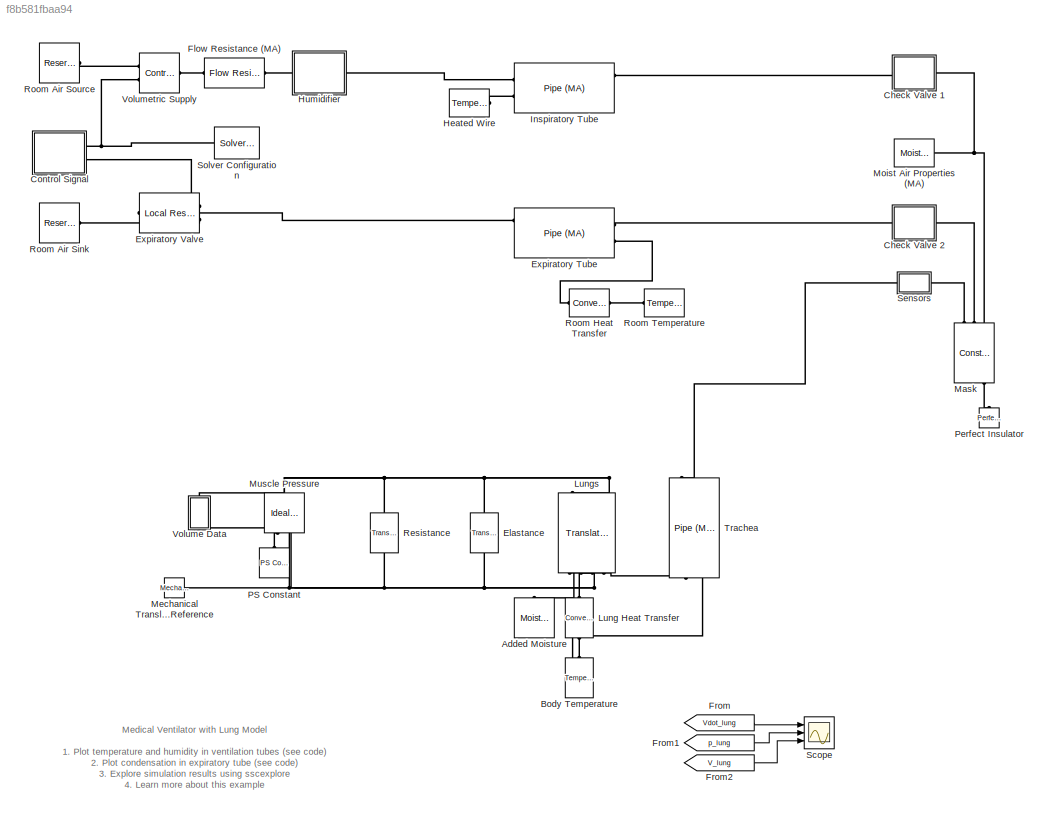
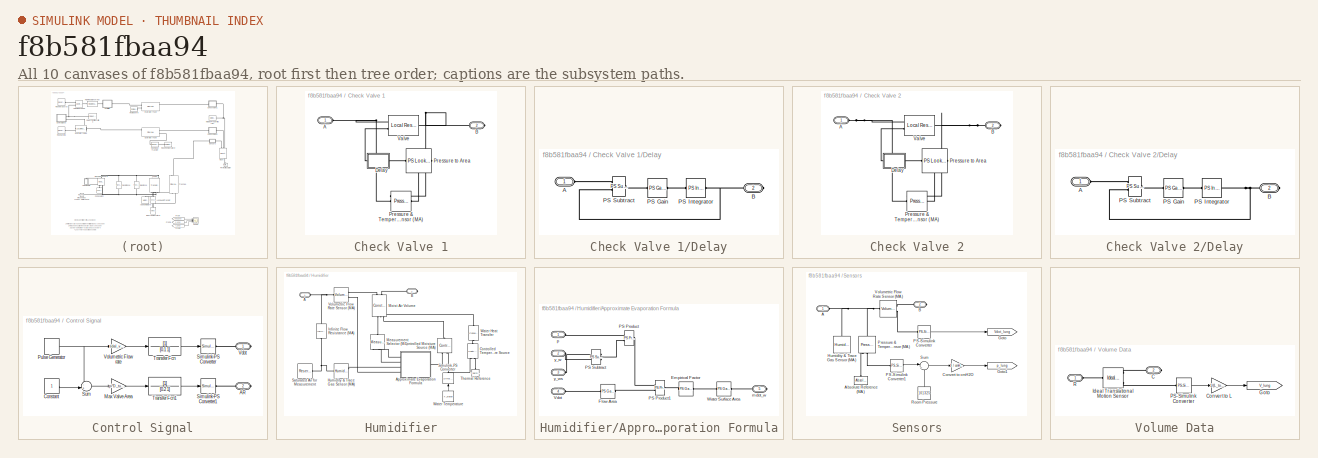
[diagram: thumbnail index - all 10 canvases of the model, root first then tree order]
MODEL slx_f8b581fbaa94
KIND model
CONFIG AbsTol = 1e-3
CONFIG EnableMultiTasking = off
CONFIG FixedStep = auto
CONFIG MaxStep = auto
CONFIG MinStep = auto
CONFIG PreLoadFcn = T_room = 20; % degC\nRH_room = 0.1;\nT_humidifier = 40; % degC\nT_body = 37; % degC\n\nL_tube = 1; % m\nD_tube = 0.01; % m\nL_trachea = 0.15; % m\nD_trachea = 0.015; % m\n\nFRC = 2; % L\nE_respiratory = 10; % cmH2O/L\nR_respiratory = 2; % cmH2O/(L/s)\nP_muscle = 0; % cmH2O\n\n% Conversion factors\ncmH2O_to_Pa = 98.0665;\nL_to_m3 = 1e-3;
CONFIG RelTol = 1e-3
CONFIG SampleTimeConstraint = Unconstrained
CONFIG Solver = VariableStepAuto
CONFIG SolverName = VariableStepAuto
CONFIG StartTime = 0.0
CONFIG StopTime = 30
BLOCK [Reference] Added Moisture  REF=fl_lib/Moist Air/Sources/Moisture & Trace Gas
Sources/Moisture Source (MA)
  NameLocation = left
  Ports = [0, 0, 0, 0, 0, 1]
  SourceBlock = fl_lib/Moist Air/Sources/Moisture & Trace Gas\nSources/Moisture Source (MA)
  SourceProductBaseCode = MT,SS
  SourceType = Moisture Source (MA)
BLOCK [Reference] Body Temperature  REF=fl_lib/Thermal/Thermal Sources/Temperature Source
  NameLocation = right
  Ports = [0, 0, 0, 0, 0, 1]
  SourceBlock = fl_lib/Thermal/Thermal Sources/Temperature Source
  SourceProductBaseCode = MT,SS
  SourceType = Temperature Source
BLOCK [SubSystem] Check Valve 1
  Ports = [0, 0, 0, 0, 0, 1, 1]
  RequestExecContextInheritance = off
  Tag = PublishSubsystem
BLOCK [PMIOPort] Check Valve 1/A
  Side = Left
BLOCK [PMIOPort] Check Valve 1/B
  Port = 2
  Side = Right
BLOCK [SubSystem] Check Valve 1/Delay
  Ports = [0, 0, 0, 0, 0, 1, 1]
  RequestExecContextInheritance = off
BLOCK [PMIOPort] Check Valve 1/Delay/A
  Side = Left
BLOCK [PMIOPort] Check Valve 1/Delay/B
  Port = 2
  Side = Right
BLOCK [Reference] Check Valve 1/Delay/PS Gain  REF=fl_lib/Physical Signals/Functions/PS Gain
  Ports = [0, 0, 0, 0, 0, 1, 1]
  SourceBlock = fl_lib/Physical Signals/Functions/PS Gain
  SourceProductBaseCode = MT,SS
  SourceType = PS Gain
BLOCK [Reference] Check Valve 1/Delay/PS Integrator  REF=fl_lib/Physical Signals/Linear Operators/PS Integrator
  Ports = [0, 0, 0, 0, 0, 1, 1]
  SourceBlock = fl_lib/Physical Signals/Linear Operators/PS Integrator
  SourceProductBaseCode = MT,SS
  SourceType = PS Integrator
BLOCK [Reference] Check Valve 1/Delay/PS Subtract  REF=fl_lib/Physical Signals/Functions/PS Subtract
  Ports = [0, 0, 0, 0, 0, 2, 1]
  SourceBlock = fl_lib/Physical Signals/Functions/PS Subtract
  SourceProductBaseCode = MT,SS
  SourceType = PS Subtract
BLOCK [Reference] Check Valve 1/Pressure & Temperature Sensor (MA)  REF=fl_lib/Moist Air/Sensors/Pressure &
Temperature Sensor
(MA)
  Ports = [0, 0, 0, 0, 0, 1, 3]
  SourceBlock = fl_lib/Moist Air/Sensors/Pressure &\nTemperature Sensor\n(MA)
  SourceProductBaseCode = MT,SS
  SourceType = Pressure &\nTemperature Sensor\n(MA)
BLOCK [Reference] Check Valve 1/Pressure to Area  REF=fl_lib/Physical Signals/Lookup Tables/PS Lookup Table (1D)
  Ports = [0, 0, 0, 0, 0, 1, 1]
  SourceBlock = fl_lib/Physical Signals/Lookup Tables/PS Lookup Table (1D)
  SourceProductBaseCode = MT,SS
  SourceType = PS Lookup Table (1D)
BLOCK [Reference] Check Valve 1/Valve  REF=fl_lib/Moist Air/Elements/Local Restriction
(MA)
  Ports = [0, 0, 0, 0, 0, 2, 1]
  SourceBlock = fl_lib/Moist Air/Elements/Local Restriction\n(MA)
  SourceProductBaseCode = MT,SS
  SourceType = Local Restriction\n(MA)
BLOCK [SubSystem] Check Valve 2
  Ports = [0, 0, 0, 0, 0, 1, 1]
  RequestExecContextInheritance = off
BLOCK [PMIOPort] Check Valve 2/A
  Side = Left
BLOCK [PMIOPort] Check Valve 2/B
  Port = 2
  Side = Right
BLOCK [SubSystem] Check Valve 2/Delay
  Ports = [0, 0, 0, 0, 0, 1, 1]
  RequestExecContextInheritance = off
BLOCK [PMIOPort] Check Valve 2/Delay/A
  Side = Left
BLOCK [PMIOPort] Check Valve 2/Delay/B
  Port = 2
  Side = Right
BLOCK [Reference] Check Valve 2/Delay/PS Gain  REF=fl_lib/Physical Signals/Functions/PS Gain
  Ports = [0, 0, 0, 0, 0, 1, 1]
  SourceBlock = fl_lib/Physical Signals/Functions/PS Gain
  SourceProductBaseCode = MT,SS
  SourceType = PS Gain
BLOCK [Reference] Check Valve 2/Delay/PS Integrator  REF=fl_lib/Physical Signals/Linear Operators/PS Integrator
  Ports = [0, 0, 0, 0, 0, 1, 1]
  SourceBlock = fl_lib/Physical Signals/Linear Operators/PS Integrator
  SourceProductBaseCode = MT,SS
  SourceType = PS Integrator
BLOCK [Reference] Check Valve 2/Delay/PS Subtract  REF=fl_lib/Physical Signals/Functions/PS Subtract
  Ports = [0, 0, 0, 0, 0, 2, 1]
  SourceBlock = fl_lib/Physical Signals/Functions/PS Subtract
  SourceProductBaseCode = MT,SS
  SourceType = PS Subtract
BLOCK [Reference] Check Valve 2/Pressure & Temperature Sensor (MA)  REF=fl_lib/Moist Air/Sensors/Pressure &
Temperature Sensor
(MA)
  Ports = [0, 0, 0, 0, 0, 1, 3]
  SourceBlock = fl_lib/Moist Air/Sensors/Pressure &\nTemperature Sensor\n(MA)
  SourceProductBaseCode = MT,SS
  SourceType = Pressure &\nTemperature Sensor\n(MA)
BLOCK [Reference] Check Valve 2/Pressure to Area  REF=fl_lib/Physical Signals/Lookup Tables/PS Lookup Table (1D)
  Ports = [0, 0, 0, 0, 0, 1, 1]
  SourceBlock = fl_lib/Physical Signals/Lookup Tables/PS Lookup Table (1D)
  SourceProductBaseCode = MT,SS
  SourceType = PS Lookup Table (1D)
BLOCK [Reference] Check Valve 2/Valve  REF=fl_lib/Moist Air/Elements/Local Restriction
(MA)
  Ports = [0, 0, 0, 0, 0, 2, 1]
  SourceBlock = fl_lib/Moist Air/Elements/Local Restriction\n(MA)
  SourceProductBaseCode = MT,SS
  SourceType = Local Restriction\n(MA)
BLOCK [SubSystem] Control Signal
  Ports = [0, 0, 0, 0, 0, 0, 2]
  RequestExecContextInheritance = off
  Tag = PublishSubsystem
BLOCK [PMIOPort] Control Signal/AR
  Port = 2
  Side = Right
BLOCK [Constant] Control Signal/Constant
BLOCK [Gain] Control Signal/Max Valve Area
  Gain = pi*D_tube^2/4
BLOCK [DiscretePulseGenerator] Control Signal/Pulse Generator
  Period = 60 / respiratory_rate
  Ports = [0, 1]
  PulseType = Time based
  PulseWidth = IE_ratio/(IE_ratio+1) * 100
BLOCK [Reference] Control Signal/Simulink-PS Converter  REF=nesl_utility/Simulink-PS
Converter
  Ports = [1, 0, 0, 0, 0, 0, 1]
  SourceBlock = nesl_utility/Simulink-PS\nConverter
  SourceProductBaseCode = MT,SS
  SourceType = Simulink-PS\nConverter
BLOCK [Reference] Control Signal/Simulink-PS Converter1  REF=nesl_utility/Simulink-PS
Converter
  Ports = [1, 0, 0, 0, 0, 0, 1]
  SourceBlock = nesl_utility/Simulink-PS\nConverter
  SourceProductBaseCode = MT,SS
  SourceType = Simulink-PS\nConverter
BLOCK [Sum] Control Signal/Sum
  Inputs = -+|
  Ports = [2, 1]
BLOCK [TransferFcn] Control Signal/Transfer Fcn
  Denominator = [0.1 1]
BLOCK [TransferFcn] Control Signal/Transfer Fcn1
  Denominator = [0.2 1]
BLOCK [PMIOPort] Control Signal/Vdot
  Side = Right
BLOCK [Gain] Control Signal/Volumetric Flow rate
  Gain = tidal_volume / ( (60/respiratory_rate) * IE_ratio/(IE_ratio+1) )
BLOCK [Reference] Elastance  REF=fl_lib/Mechanical/Translational
Elements/Translational Spring
  NameLocation = right
  Ports = [0, 0, 0, 0, 0, 1, 1]
  SourceBlock = fl_lib/Mechanical/Translational\nElements/Translational Spring
  SourceProductBaseCode = MT,SS
  SourceType = Translational Spring
BLOCK [Reference] Expiratory Tube  REF=fl_lib/Moist Air/Elements/Pipe (MA)
  Ports = [0, 0, 0, 0, 0, 2, 3]
  SourceBlock = fl_lib/Moist Air/Elements/Pipe (MA)
  SourceProductBaseCode = MT,SS
  SourceType = Pipe (MA)
BLOCK [Reference] Expiratory Valve  REF=fl_lib/Moist Air/Elements/Local Restriction
(MA)
  Ports = [0, 0, 0, 0, 0, 2, 1]
  SourceBlock = fl_lib/Moist Air/Elements/Local Restriction\n(MA)
  SourceProductBaseCode = MT,SS
  SourceType = Local Restriction\n(MA)
BLOCK [Reference] Flow Resistance (MA)  REF=fl_lib/Moist Air/Elements/Flow Resistance (MA)
  Ports = [0, 0, 0, 0, 0, 1, 1]
  SourceBlock = fl_lib/Moist Air/Elements/Flow Resistance (MA)
  SourceProductBaseCode = MT,SS
  SourceType = Flow Resistance (MA)
BLOCK [From] From
  GotoTag = Vdot_lung
  TagVisibility = global
BLOCK [From] From1
  GotoTag = p_lung
  TagVisibility = global
BLOCK [From] From2
  GotoTag = V_lung
  TagVisibility = global
BLOCK [Reference] Heated Wire  REF=fl_lib/Thermal/Thermal Sources/Temperature Source
  Ports = [0, 0, 0, 0, 0, 1]
  SourceBlock = fl_lib/Thermal/Thermal Sources/Temperature Source
  SourceProductBaseCode = MT,SS
  SourceType = Temperature Source
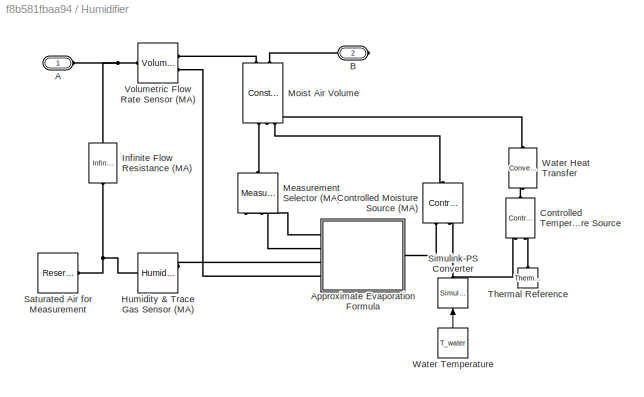
BLOCK [SubSystem] Humidifier
  Ports = [0, 0, 0, 0, 0, 1, 1]
  RequestExecContextInheritance = off
  Tag = PublishSubsystem
BLOCK [PMIOPort] Humidifier/A
  Side = Left
BLOCK [SubSystem] Humidifier/Approximate Evaporation Formula
  Ports = [0, 0, 0, 0, 0, 4, 1]
  RequestExecContextInheritance = off
BLOCK [Reference] Humidifier/Approximate Evaporation Formula/Empirical Factor  REF=fl_lib/Physical Signals/Functions/PS Gain
  Ports = [0, 0, 0, 0, 0, 1, 1]
  SourceBlock = fl_lib/Physical Signals/Functions/PS Gain
  SourceProductBaseCode = MT,SS
  SourceType = PS Gain
BLOCK [Reference] Humidifier/Approximate Evaporation Formula/Flow Area  REF=fl_lib/Physical Signals/Functions/PS Gain
  Ports = [0, 0, 0, 0, 0, 1, 1]
  SourceBlock = fl_lib/Physical Signals/Functions/PS Gain
  SourceProductBaseCode = MT,SS
  SourceType = PS Gain
BLOCK [Reference] Humidifier/Approximate Evaporation Formula/PS Product  REF=fl_lib/Physical Signals/Functions/PS Product
  Ports = [0, 0, 0, 0, 0, 2, 1]
  SourceBlock = fl_lib/Physical Signals/Functions/PS Product
  SourceProductBaseCode = MT,SS
  SourceType = PS Product
BLOCK [Reference] Humidifier/Approximate Evaporation Formula/PS Product1  REF=fl_lib/Physical Signals/Functions/PS Product
  Ports = [0, 0, 0, 0, 0, 2, 1]
  SourceBlock = fl_lib/Physical Signals/Functions/PS Product
  SourceProductBaseCode = MT,SS
  SourceType = PS Product
BLOCK [Reference] Humidifier/Approximate Evaporation Formula/PS Subtract  REF=fl_lib/Physical Signals/Functions/PS Subtract
  Ports = [0, 0, 0, 0, 0, 2, 1]
  SourceBlock = fl_lib/Physical Signals/Functions/PS Subtract
  SourceProductBaseCode = MT,SS
  SourceType = PS Subtract
BLOCK [PMIOPort] Humidifier/Approximate Evaporation Formula/Vdot
  Port = 4
  Side = Left
BLOCK [Reference] Humidifier/Approximate Evaporation Formula/Water Surface Area  REF=fl_lib/Physical Signals/Functions/PS Gain
  Ports = [0, 0, 0, 0, 0, 1, 1]
  SourceBlock = fl_lib/Physical Signals/Functions/PS Gain
  SourceProductBaseCode = MT,SS
  SourceType = PS Gain
BLOCK [PMIOPort] Humidifier/Approximate Evaporation Formula/mdot_w
  Port = 5
  Side = Right
BLOCK [PMIOPort] Humidifier/Approximate Evaporation Formula/p
  Side = Left
BLOCK [PMIOPort] Humidifier/Approximate Evaporation Formula/y_w
  Port = 2
  Side = Left
BLOCK [PMIOPort] Humidifier/Approximate Evaporation Formula/y_ws
  Port = 3
  Side = Left
BLOCK [PMIOPort] Humidifier/B
  Port = 2
  Side = Right
BLOCK [Reference] Humidifier/Controlled Moisture Source (MA)  REF=fl_lib/Moist Air/Sources/Moisture & Trace Gas
Sources/Controlled Moisture
Source (MA)
  NameLocation = right
  Ports = [0, 0, 0, 0, 0, 1, 2]
  SourceBlock = fl_lib/Moist Air/Sources/Moisture & Trace Gas\nSources/Controlled Moisture\nSource (MA)
  SourceProductBaseCode = MT,SS
  SourceType = Controlled Moisture\nSource (MA)
BLOCK [Reference] Humidifier/Controlled Temperature Source  REF=fl_lib/Thermal/Thermal Sources/Controlled
Temperature Source
  NameLocation = right
  Ports = [0, 0, 0, 0, 0, 1, 2]
  SourceBlock = fl_lib/Thermal/Thermal Sources/Controlled\nTemperature Source
  SourceProductBaseCode = MT,SS
  SourceType = Controlled\nTemperature Source
BLOCK [Reference] Humidifier/Humidity & Trace Gas Sensor (MA)  REF=fl_lib/Moist Air/Sensors/Humidity & Trace Gas
Sensor (MA)
  Ports = [0, 0, 0, 0, 0, 1, 2]
  SourceBlock = fl_lib/Moist Air/Sensors/Humidity & Trace Gas\nSensor (MA)
  SourceProductBaseCode = MT,SS
  SourceType = Humidity & Trace Gas\nSensor (MA)
BLOCK [Reference] Humidifier/Infinite Flow Resistance (MA)  REF=fl_lib/Moist Air/Elements/Infinite Flow
Resistance (MA)
  NameLocation = right
  Ports = [0, 0, 0, 0, 0, 1, 1]
  SourceBlock = fl_lib/Moist Air/Elements/Infinite Flow\nResistance (MA)
  SourceProductBaseCode = MT,SS
  SourceType = Infinite Flow\nResistance (MA)
BLOCK [Reference] Humidifier/Measurement Selector (MA)  REF=fl_lib/Moist Air/Sensors/Measurement Selector
(MA)
  NameLocation = right
  Ports = [0, 0, 0, 0, 0, 1, 4]
  SourceBlock = fl_lib/Moist Air/Sensors/Measurement Selector\n(MA)
  SourceProductBaseCode = MT,SS
  SourceType = Measurement Selector\n(MA)
BLOCK [Reference] Humidifier/Moist Air Volume  REF=fl_lib/Moist Air/Elements/Constant Volume
Chamber (MA)
  NameLocation = right
  Ports = [0, 0, 0, 0, 0, 2, 4]
  SourceBlock = fl_lib/Moist Air/Elements/Constant Volume\nChamber (MA)
  SourceProductBaseCode = MT,SS
  SourceType = Constant Volume\nChamber (MA)
BLOCK [Reference] Humidifier/Saturated Air for Measurement  REF=fl_lib/Moist Air/Elements/Reservoir (MA)
  Ports = [0, 0, 0, 0, 0, 1]
  SourceBlock = fl_lib/Moist Air/Elements/Reservoir (MA)
  SourceProductBaseCode = MT,SS
  SourceType = Reservoir (MA)
BLOCK [Reference] Humidifier/Simulink-PS Converter  REF=nesl_utility/Simulink-PS
Converter
  NameLocation = right
  Ports = [1, 0, 0, 0, 0, 0, 1]
  SourceBlock = nesl_utility/Simulink-PS\nConverter
  SourceProductBaseCode = MT,SS
  SourceType = Simulink-PS\nConverter
BLOCK [Reference] Humidifier/Thermal Reference  REF=fl_lib/Thermal/Thermal Elements/Thermal Reference
  NameLocation = right
  Ports = [0, 0, 0, 0, 0, 1]
  SourceBlock = fl_lib/Thermal/Thermal Elements/Thermal Reference
  SourceProductBaseCode = MT,SS
  SourceType = Thermal Reference
BLOCK [Reference] Humidifier/Volumetric Flow Rate Sensor (MA)  REF=fl_lib/Moist Air/Sensors/Volumetric Flow Rate
Sensor (MA)
  Ports = [0, 0, 0, 0, 0, 1, 2]
  SourceBlock = fl_lib/Moist Air/Sensors/Volumetric Flow Rate\nSensor (MA)
  SourceProductBaseCode = MT,SS
  SourceType = Volumetric Flow Rate\nSensor (MA)
BLOCK [Reference] Humidifier/Water Heat Transfer  REF=fl_lib/Thermal/Thermal Elements/Convective Heat
Transfer
  NameLocation = right
  Ports = [0, 0, 0, 0, 0, 1, 1]
  SourceBlock = fl_lib/Thermal/Thermal Elements/Convective Heat\nTransfer
  SourceProductBaseCode = MT,SS
  SourceType = Convective Heat\nTransfer
BLOCK [Constant] Humidifier/Water Temperature
  NameLocation = right
  Value = T_water
BLOCK [Reference] Inspiratory Tube  REF=fl_lib/Moist Air/Elements/Pipe (MA)
  Ports = [0, 0, 0, 0, 0, 2, 3]
  SourceBlock = fl_lib/Moist Air/Elements/Pipe (MA)
  SourceProductBaseCode = MT,SS
  SourceType = Pipe (MA)
BLOCK [Reference] Lung Heat Transfer  REF=fl_lib/Thermal/Thermal Elements/Convective Heat
Transfer
  NameLocation = right
  Ports = [0, 0, 0, 0, 0, 1, 1]
  SourceBlock = fl_lib/Thermal/Thermal Elements/Convective Heat\nTransfer
  SourceProductBaseCode = MT,SS
  SourceType = Convective Heat\nTransfer
BLOCK [Reference] Lungs  REF=fl_lib/Moist Air/Elements/Translational
Mechanical Converter
(MA)
  NameLocation = right
  Ports = [0, 0, 0, 0, 0, 4, 3]
  SourceBlock = fl_lib/Moist Air/Elements/Translational\nMechanical Converter\n(MA)
  SourceProductBaseCode = MT,SS
  SourceType = Translational\nMechanical Converter\n(MA)
BLOCK [Reference] Mask  REF=fl_lib/Moist Air/Elements/Constant Volume
Chamber (MA)
  NameLocation = right
  Ports = [0, 0, 0, 0, 0, 3, 3]
  SourceBlock = fl_lib/Moist Air/Elements/Constant Volume\nChamber (MA)
  SourceProductBaseCode = MT,SS
  SourceType = Constant Volume\nChamber (MA)
BLOCK [Reference] Mechanical Translational Reference  REF=fl_lib/Mechanical/Translational
Elements/Mechanical
Translational
Reference
  Ports = [0, 0, 0, 0, 0, 1]
  SourceBlock = fl_lib/Mechanical/Translational\nElements/Mechanical\nTranslational\nReference
  SourceProductBaseCode = MT,SS
  SourceType = Mechanical\nTranslational\nReference
BLOCK [Reference] Moist Air Properties (MA)  REF=fl_lib/Moist Air/Utilities/Moist Air Properties
(MA)
  Ports = [0, 0, 0, 0, 0, 0, 1]
  SourceBlock = fl_lib/Moist Air/Utilities/Moist Air Properties\n(MA)
  SourceProductBaseCode = MT,SS
  SourceType = Moist Air Properties\n(MA)
BLOCK [Reference] Muscle Pressure  REF=fl_lib/Mechanical/Mechanical Sources/Ideal Force Source
  NameLocation = right
  Ports = [0, 0, 0, 0, 0, 1, 2]
  SourceBlock = fl_lib/Mechanical/Mechanical Sources/Ideal Force Source
  SourceProductBaseCode = MT,SS
  SourceType = Ideal Force Source
BLOCK [Reference] PS Constant  REF=fl_lib/Physical Signals/Sources/PS Constant
  NameLocation = right
  Ports = [0, 0, 0, 0, 0, 0, 1]
  SourceBlock = fl_lib/Physical Signals/Sources/PS Constant
  SourceProductBaseCode = MT,SS
  SourceType = PS Constant
BLOCK [Reference] Perfect Insulator  REF=fl_lib/Thermal/Thermal Elements/Perfect Insulator
  NameLocation = right
  Ports = [0, 0, 0, 0, 0, 1]
  SourceBlock = fl_lib/Thermal/Thermal Elements/Perfect Insulator
  SourceProductBaseCode = MT,SS
  SourceType = Perfect Insulator
BLOCK [Reference] Resistance  REF=fl_lib/Mechanical/Translational
Elements/Translational Damper
  NameLocation = right
  Ports = [0, 0, 0, 0, 0, 1, 1]
  SourceBlock = fl_lib/Mechanical/Translational\nElements/Translational Damper
  SourceProductBaseCode = MT,SS
  SourceType = Translational Damper
BLOCK [Reference] Room Air Sink  REF=fl_lib/Moist Air/Elements/Reservoir (MA)
  Ports = [0, 0, 0, 0, 0, 1]
  SourceBlock = fl_lib/Moist Air/Elements/Reservoir (MA)
  SourceProductBaseCode = MT,SS
  SourceType = Reservoir (MA)
BLOCK [Reference] Room Air Source  REF=fl_lib/Moist Air/Elements/Reservoir (MA)
  Ports = [0, 0, 0, 0, 0, 1]
  SourceBlock = fl_lib/Moist Air/Elements/Reservoir (MA)
  SourceProductBaseCode = MT,SS
  SourceType = Reservoir (MA)
BLOCK [Reference] Room Heat Transfer  REF=fl_lib/Thermal/Thermal Elements/Convective Heat
Transfer
  Ports = [0, 0, 0, 0, 0, 1, 1]
  SourceBlock = fl_lib/Thermal/Thermal Elements/Convective Heat\nTransfer
  SourceProductBaseCode = MT,SS
  SourceType = Convective Heat\nTransfer
BLOCK [Reference] Room Temperature  REF=fl_lib/Thermal/Thermal Sources/Temperature Source
  Ports = [0, 0, 0, 0, 0, 1]
  SourceBlock = fl_lib/Thermal/Thermal Sources/Temperature Source
  SourceProductBaseCode = MT,SS
  SourceType = Temperature Source
BLOCK [Scope] Scope
  Floating = off
  NumInputPorts = 3
  Ports = [3]
  ScopeSpecificationString = Simulink.scopes.TimeScopeBlockCfg('CurrentConfiguration', extmgr.ConfigurationSet(extmgr.Configuration('Core','General UI',true),extmgr.Configuration('Core','Source UI',true),extmgr.Configuration('Sources','WiredSimulink',true),extmgr.Configuration('Visuals','Time Domain',true,'SerializedDisplays',{struct('MinYLimReal','-30','MaxYLimReal','40','YLabelReal','','MinYLimMag','0.00000','MaxYLimMag','3...<+2646ch>
  Tag = PublishScope
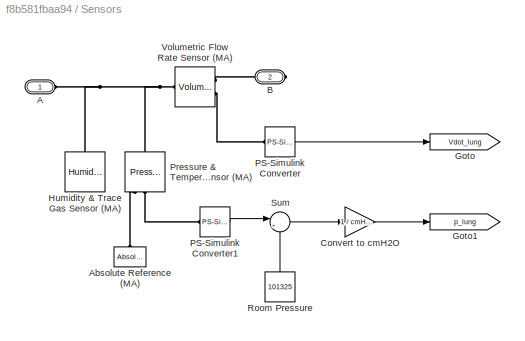
BLOCK [SubSystem] Sensors
  Ports = [0, 0, 0, 0, 0, 1, 1]
  RequestExecContextInheritance = off
BLOCK [PMIOPort] Sensors/A
  Side = Left
BLOCK [Reference] Sensors/Absolute Reference (MA)  REF=fl_lib/Moist Air/Elements/Absolute Reference
(MA)
  NameLocation = right
  Ports = [0, 0, 0, 0, 0, 1]
  SourceBlock = fl_lib/Moist Air/Elements/Absolute Reference\n(MA)
  SourceProductBaseCode = MT,SS
  SourceType = Absolute Reference\n(MA)
BLOCK [PMIOPort] Sensors/B
  Port = 2
  Side = Right
BLOCK [Gain] Sensors/Convert to cmH2O
  Gain = 1 / cmH2O_to_Pa
BLOCK [Goto] Sensors/Goto
  GotoTag = Vdot_lung
  TagVisibility = global
BLOCK [Goto] Sensors/Goto1
  GotoTag = p_lung
  TagVisibility = global
BLOCK [Reference] Sensors/Humidity & Trace Gas Sensor (MA)  REF=fl_lib/Moist Air/Sensors/Humidity & Trace Gas
Sensor (MA)
  NameLocation = left
  Ports = [0, 0, 0, 0, 0, 1, 2]
  SourceBlock = fl_lib/Moist Air/Sensors/Humidity & Trace Gas\nSensor (MA)
  SourceProductBaseCode = MT,SS
  SourceType = Humidity & Trace Gas\nSensor (MA)
BLOCK [Reference] Sensors/PS-Simulink Converter  REF=nesl_utility/PS-Simulink
Converter
  Ports = [0, 1, 0, 0, 0, 1]
  SourceBlock = nesl_utility/PS-Simulink\nConverter
  SourceProductBaseCode = MT,SS
  SourceType = PS-Simulink\nConverter
BLOCK [Reference] Sensors/PS-Simulink Converter1  REF=nesl_utility/PS-Simulink
Converter
  Ports = [0, 1, 0, 0, 0, 1]
  SourceBlock = nesl_utility/PS-Simulink\nConverter
  SourceProductBaseCode = MT,SS
  SourceType = PS-Simulink\nConverter
BLOCK [Reference] Sensors/Pressure & Temperature Sensor (MA)  REF=fl_lib/Moist Air/Sensors/Pressure &
Temperature Sensor
(MA)
  NameLocation = right
  Ports = [0, 0, 0, 0, 0, 1, 3]
  SourceBlock = fl_lib/Moist Air/Sensors/Pressure &\nTemperature Sensor\n(MA)
  SourceProductBaseCode = MT,SS
  SourceType = Pressure &\nTemperature Sensor\n(MA)
BLOCK [Constant] Sensors/Room Pressure
  NameLocation = right
  Value = 101325
BLOCK [Sum] Sensors/Sum
  Inputs = |+-
  Ports = [2, 1]
BLOCK [Reference] Sensors/Volumetric Flow Rate Sensor (MA)  REF=fl_lib/Moist Air/Sensors/Volumetric Flow Rate
Sensor (MA)
  Ports = [0, 0, 0, 0, 0, 1, 2]
  SourceBlock = fl_lib/Moist Air/Sensors/Volumetric Flow Rate\nSensor (MA)
  SourceProductBaseCode = MT,SS
  SourceType = Volumetric Flow Rate\nSensor (MA)
BLOCK [Reference] Solver Configuration  REF=nesl_utility/Solver
Configuration
  Ports = [0, 0, 0, 0, 0, 0, 1]
  SourceBlock = nesl_utility/Solver\nConfiguration
  SourceProductBaseCode = MT,SS
  SourceType = Solver\nConfiguration
BLOCK [Reference] Trachea  REF=fl_lib/Moist Air/Elements/Pipe (MA)
  NameLocation = right
  Ports = [0, 0, 0, 0, 0, 2, 3]
  SourceBlock = fl_lib/Moist Air/Elements/Pipe (MA)
  SourceProductBaseCode = MT,SS
  SourceType = Pipe (MA)
BLOCK [SubSystem] Volume Data
  NameLocation = right
  Ports = [0, 0, 0, 0, 0, 1, 1]
  RequestExecContextInheritance = off
BLOCK [PMIOPort] Volume Data/C
  Port = 2
  Side = Right
BLOCK [Gain] Volume Data/Convert to L
  Gain = 1/(L_to_m3)
BLOCK [Goto] Volume Data/Goto
  GotoTag = V_lung
  TagVisibility = global
BLOCK [Reference] Volume Data/Ideal Translational Motion Sensor  REF=fl_lib/Mechanical/Mechanical Sensors/Ideal Translational
Motion Sensor
  Ports = [0, 0, 0, 0, 0, 1, 3]
  SourceBlock = fl_lib/Mechanical/Mechanical Sensors/Ideal Translational\nMotion Sensor
  SourceProductBaseCode = MT,SS
  SourceType = Ideal Translational\nMotion Sensor
BLOCK [Reference] Volume Data/PS-Simulink Converter  REF=nesl_utility/PS-Simulink
Converter
  Ports = [0, 1, 0, 0, 0, 1]
  SourceBlock = nesl_utility/PS-Simulink\nConverter
  SourceProductBaseCode = MT,SS
  SourceType = PS-Simulink\nConverter
BLOCK [PMIOPort] Volume Data/R
  Side = Left
BLOCK [Reference] Volumetric Supply  REF=fl_lib/Moist Air/Sources/Controlled
Volumetric Flow Rate
Source (MA)
  Ports = [0, 0, 0, 0, 0, 2, 1]
  SourceBlock = fl_lib/Moist Air/Sources/Controlled\nVolumetric Flow Rate\nSource (MA)
  SourceProductBaseCode = MT,SS
  SourceType = Controlled\nVolumetric Flow Rate\nSource (MA)
ANNOTATION (root): 1. Plot temperature and humidity in ventilation tubes ( see code ) 2. Plot condensation in expiratory tube ( see code ) 3. Explore simulation results using sscexplore 4. Learn more about this example
ANNOTATION (root): Medical Ventilator with Lung Model
LINE Control Signal/Constant:1 -> Control Signal/Sum:2
LINE Control Signal/Max Valve Area:1 -> Control Signal/Transfer Fcn1:1
NET Control Signal/Pulse Generator:1 -> Control Signal/Sum:1, Control Signal/Volumetric Flow rate:1
LINE Control Signal/Sum:1 -> Control Signal/Max Valve Area:1
LINE Control Signal/Transfer Fcn1:1 -> Control Signal/Simulink-PS Converter1:1
LINE Control Signal/Transfer Fcn:1 -> Control Signal/Simulink-PS Converter:1
LINE Control Signal/Volumetric Flow rate:1 -> Control Signal/Transfer Fcn:1
LINE From1:1 -> Scope:2
LINE From2:1 -> Scope:3
LINE From:1 -> Scope:1
LINE Humidifier/Water Temperature:1 -> Humidifier/Simulink-PS Converter:1
LINE Sensors/Convert to cmH2O:1 -> Sensors/Goto1:1
LINE Sensors/PS-Simulink Converter1:1 -> Sensors/Sum:1
LINE Sensors/PS-Simulink Converter:1 -> Sensors/Goto:1
LINE Sensors/Room Pressure:1 -> Sensors/Sum:2
LINE Sensors/Sum:1 -> Sensors/Convert to cmH2O:1
LINE Volume Data/Convert to L:1 -> Volume Data/Goto:1
LINE Volume Data/PS-Simulink Converter:1 -> Volume Data/Convert to L:1
PLINE Added Moisture:LConn1 -- Lungs:LConn4
PNET net1: Body Temperature:LConn1 -- Lung Heat Transfer:RConn1 -- Trachea:LConn2
PNET net2: Check Valve 1/A:RConn1 -- Check Valve 1/Pressure & Temperature Sensor (MA):LConn1 -- Check Valve 1/Valve:LConn1
PNET net3: Check Valve 1/B:RConn1 -- Check Valve 1/Pressure & Temperature Sensor (MA):RConn1 -- Check Valve 1/Valve:RConn1
PLINE Check Valve 1/Delay/A:RConn1 -- Check Valve 1/Delay/PS Subtract:LConn1
PNET net4: Check Valve 1/Delay/B:RConn1 -- Check Valve 1/Delay/PS Integrator:RConn1 -- Check Valve 1/Delay/PS Subtract:LConn2
PLINE Check Valve 1/Delay/PS Gain:LConn1 -- Check Valve 1/Delay/PS Subtract:RConn1
PLINE Check Valve 1/Delay/PS Gain:RConn1 -- Check Valve 1/Delay/PS Integrator:LConn1
PLINE Check Valve 1/Delay:LConn1 -- Check Valve 1/Pressure to Area:RConn1
PLINE Check Valve 1/Delay:RConn1 -- Check Valve 1/Valve:LConn2
PLINE Check Valve 1/Pressure & Temperature Sensor (MA):RConn2 -- Check Valve 1/Pressure to Area:LConn1
PLINE Check Valve 1:LConn1 -- Inspiratory Tube:RConn1
PNET net5: Check Valve 1:RConn1 -- Mask:LConn3 -- Moist Air Properties (MA):RConn1
PNET net6: Check Valve 2/A:RConn1 -- Check Valve 2/Pressure & Temperature Sensor (MA):LConn1 -- Check Valve 2/Valve:LConn1
PNET net7: Check Valve 2/B:RConn1 -- Check Valve 2/Pressure & Temperature Sensor (MA):RConn1 -- Check Valve 2/Valve:RConn1
PLINE Check Valve 2/Delay/A:RConn1 -- Check Valve 2/Delay/PS Subtract:LConn1
PNET net8: Check Valve 2/Delay/B:RConn1 -- Check Valve 2/Delay/PS Integrator:RConn1 -- Check Valve 2/Delay/PS Subtract:LConn2
PLINE Check Valve 2/Delay/PS Gain:LConn1 -- Check Valve 2/Delay/PS Subtract:RConn1
PLINE Check Valve 2/Delay/PS Gain:RConn1 -- Check Valve 2/Delay/PS Integrator:LConn1
PLINE Check Valve 2/Delay:LConn1 -- Check Valve 2/Pressure to Area:RConn1
PLINE Check Valve 2/Delay:RConn1 -- Check Valve 2/Valve:LConn2
PLINE Check Valve 2/Pressure & Temperature Sensor (MA):RConn2 -- Check Valve 2/Pressure to Area:LConn1
PLINE Check Valve 2:LConn1 -- Mask:LConn2
PLINE Check Valve 2:RConn1 -- Expiratory Tube:LConn1
PLINE Control Signal/AR:RConn1 -- Control Signal/Simulink-PS Converter1:RConn1
PLINE Control Signal/Simulink-PS Converter:RConn1 -- Control Signal/Vdot:RConn1
PNET net9: Control Signal:RConn1 -- Solver Configuration:RConn1 -- Volumetric Supply:LConn2
PLINE Control Signal:RConn2 -- Expiratory Valve:LConn2
PNET net10: Elastance:LConn1 -- Lungs:RConn1 -- Muscle Pressure:LConn1 -- Resistance:LConn1 -- Volume Data:LConn1
PNET net11: Elastance:RConn1 -- Lungs:LConn2 -- Mechanical Translational Reference:LConn1 -- Muscle Pressure:RConn2 -- Resistance:RConn1 -- Volume Data:RConn1
PLINE Expiratory Tube:LConn2 -- Room Heat Transfer:LConn1
PLINE Expiratory Tube:RConn1 -- Expiratory Valve:RConn1
PLINE Expiratory Valve:LConn1 -- Room Air Sink:LConn1
PLINE Flow Resistance (MA):LConn1 -- Volumetric Supply:RConn1
PLINE Flow Resistance (MA):RConn1 -- Humidifier:LConn1
PLINE Heated Wire:LConn1 -- Inspiratory Tube:LConn2
PNET net12: Humidifier/A:RConn1 -- Humidifier/Infinite Flow Resistance (MA):RConn1 -- Humidifier/Volumetric Flow Rate Sensor (MA):LConn1
PLINE Humidifier/Approximate Evaporation Formula/Empirical Factor:LConn1 -- Humidifier/Approximate Evaporation Formula/PS Product1:RConn1
PLINE Humidifier/Approximate Evaporation Formula/Empirical Factor:RConn1 -- Humidifier/Approximate Evaporation Formula/Water Surface Area:LConn1
PLINE Humidifier/Approximate Evaporation Formula/Flow Area:LConn1 -- Humidifier/Approximate Evaporation Formula/Vdot:RConn1
PLINE Humidifier/Approximate Evaporation Formula/Flow Area:RConn1 -- Humidifier/Approximate Evaporation Formula/PS Product1:LConn2
PLINE Humidifier/Approximate Evaporation Formula/PS Product1:LConn1 -- Humidifier/Approximate Evaporation Formula/PS Product:RConn1
PLINE Humidifier/Approximate Evaporation Formula/PS Product:LConn1 -- Humidifier/Approximate Evaporation Formula/p:RConn1
PLINE Humidifier/Approximate Evaporation Formula/PS Product:LConn2 -- Humidifier/Approximate Evaporation Formula/PS Subtract:RConn1
PLINE Humidifier/Approximate Evaporation Formula/PS Subtract:LConn1 -- Humidifier/Approximate Evaporation Formula/y_ws:RConn1
PLINE Humidifier/Approximate Evaporation Formula/PS Subtract:LConn2 -- Humidifier/Approximate Evaporation Formula/y_w:RConn1
PLINE Humidifier/Approximate Evaporation Formula/Water Surface Area:RConn1 -- Humidifier/Approximate Evaporation Formula/mdot_w:RConn1
PLINE Humidifier/Approximate Evaporation Formula:LConn1 -- Humidifier/Measurement Selector (MA):RConn1
PLINE Humidifier/Approximate Evaporation Formula:LConn2 -- Humidifier/Measurement Selector (MA):RConn3
PLINE Humidifier/Approximate Evaporation Formula:LConn3 -- Humidifier/Humidity & Trace Gas Sensor (MA):RConn1
PLINE Humidifier/Approximate Evaporation Formula:LConn4 -- Humidifier/Volumetric Flow Rate Sensor (MA):RConn2
PLINE Humidifier/Approximate Evaporation Formula:RConn1 -- Humidifier/Controlled Moisture Source (MA):RConn1
PLINE Humidifier/B:RConn1 -- Humidifier/Moist Air Volume:LConn2
PLINE Humidifier/Controlled Moisture Source (MA):LConn1 -- Humidifier/Moist Air Volume:RConn4
PNET net13: Humidifier/Controlled Moisture Source (MA):RConn2 -- Humidifier/Controlled Temperature Source:RConn1 -- Humidifier/Simulink-PS Converter:RConn1
PLINE Humidifier/Controlled Temperature Source:LConn1 -- Humidifier/Water Heat Transfer:RConn1
PLINE Humidifier/Controlled Temperature Source:RConn2 -- Humidifier/Thermal Reference:LConn1
PNET net14: Humidifier/Humidity & Trace Gas Sensor (MA):LConn1 -- Humidifier/Infinite Flow Resistance (MA):LConn1 -- Humidifier/Saturated Air for Measurement:LConn1
PLINE Humidifier/Measurement Selector (MA):LConn1 -- Humidifier/Moist Air Volume:RConn2
PLINE Humidifier/Moist Air Volume:LConn1 -- Humidifier/Volumetric Flow Rate Sensor (MA):RConn1
PLINE Humidifier/Moist Air Volume:RConn3 -- Humidifier/Water Heat Transfer:LConn1
PLINE Humidifier:RConn1 -- Inspiratory Tube:LConn1
PLINE Lung Heat Transfer:LConn1 -- Lungs:LConn3
PLINE Lungs:LConn1 -- Trachea:LConn1
PLINE Mask:LConn1 -- Sensors:LConn1
PLINE Mask:RConn3 -- Perfect Insulator:LConn1
PLINE Muscle Pressure:RConn1 -- PS Constant:RConn1
PLINE Room Air Source:LConn1 -- Volumetric Supply:LConn1
PLINE Room Heat Transfer:RConn1 -- Room Temperature:LConn1
PNET net15: Sensors/A:RConn1 -- Sensors/Humidity & Trace Gas Sensor (MA):LConn1 -- Sensors/Pressure & Temperature Sensor (MA):LConn1 -- Sensors/Volumetric Flow Rate Sensor (MA):LConn1
PLINE Sensors/Absolute Reference (MA):LConn1 -- Sensors/Pressure & Temperature Sensor (MA):RConn1
PLINE Sensors/B:RConn1 -- Sensors/Volumetric Flow Rate Sensor (MA):RConn1
PLINE Sensors/PS-Simulink Converter1:LConn1 -- Sensors/Pressure & Temperature Sensor (MA):RConn2
PLINE Sensors/PS-Simulink Converter:LConn1 -- Sensors/Volumetric Flow Rate Sensor (MA):RConn2
PLINE Sensors:RConn1 -- Trachea:RConn1
PLINE Volume Data/C:RConn1 -- Volume Data/Ideal Translational Motion Sensor:RConn1
PLINE Volume Data/Ideal Translational Motion Sensor:LConn1 -- Volume Data/R:RConn1
PLINE Volume Data/Ideal Translational Motion Sensor:RConn3 -- Volume Data/PS-Simulink Converter:LConn1
note: NET lines group one-source signal fan-out (src -> all destinations, sorted); 1:1 wires keep LINE; PNET lines group multi-terminal physical nets as a canonical sorted terminal list (undirected conserving connections); 2-terminal nets keep the pairwise PLINE form
